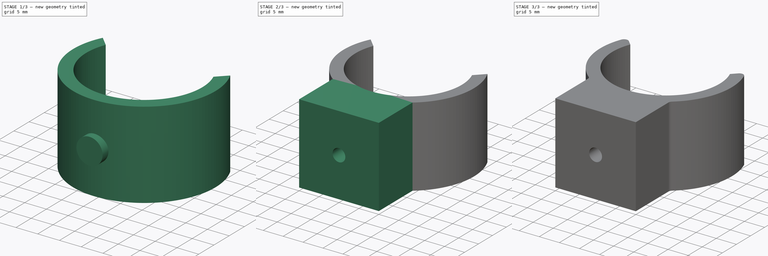
[diagram: build sequence overview — one tinted view per stage of 3, left to right]
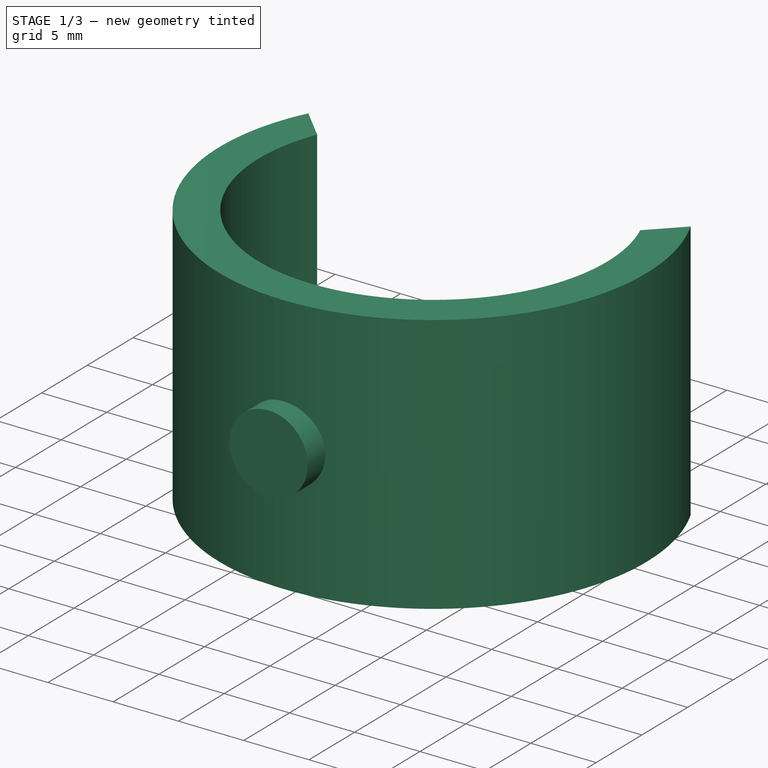
[diagram: stage 1 of 3 — iso view after this stage's code; geometry added in this stage tinted green]
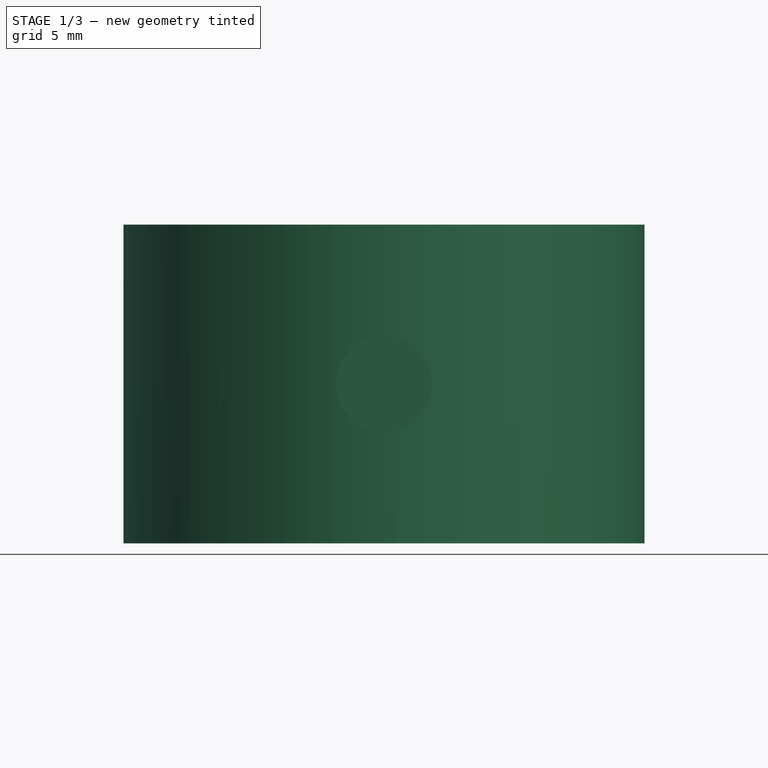
[diagram: stage 1 of 3 — front view after this stage's code; geometry added in this stage tinted green]
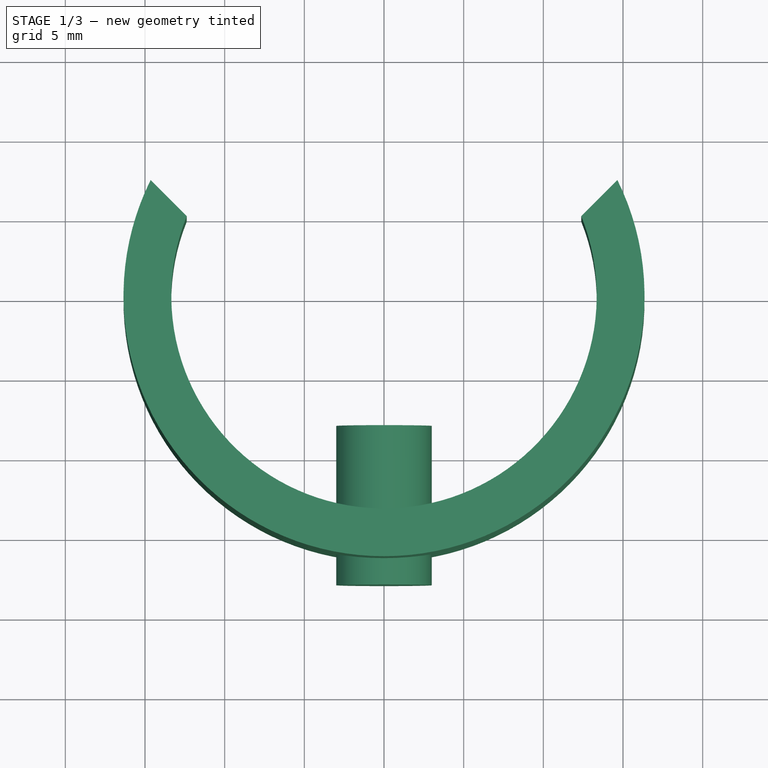
[diagram: stage 1 of 3 — top view after this stage's code; geometry added in this stage tinted green]
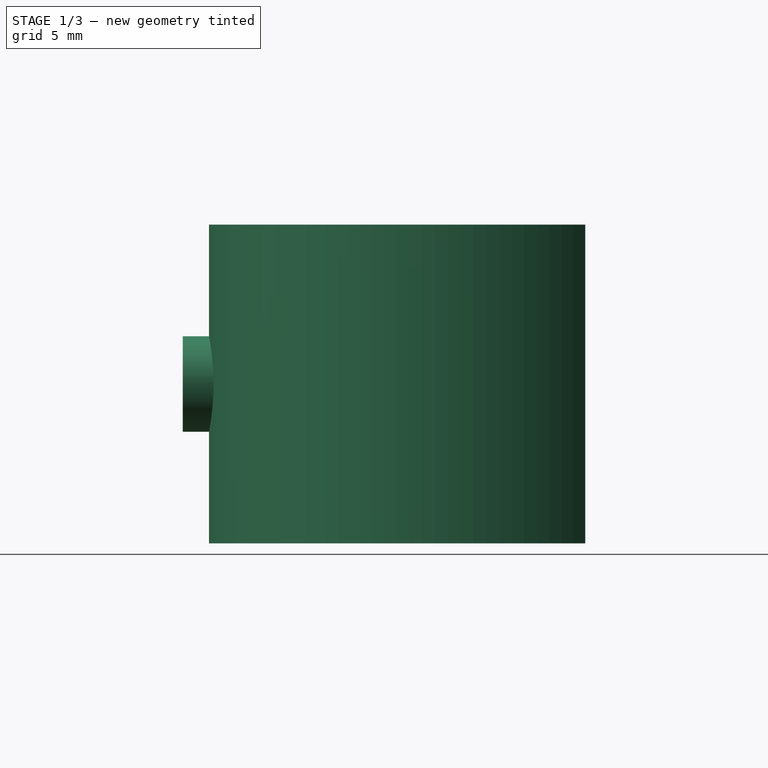
[diagram: stage 1 of 3 — right view after this stage's code; geometry added in this stage tinted green]
FCSTD DOCUMENT  (FreeCAD 0.16R6707 (Git))
Label: gluestick_holder
License: All rights reserved
LicenseURL: http://en.wikipedia.org/wiki/All_rights_reserved
objects: Sketcher::SketchObject×3, PartDesign::Pad×2, Part::Fillet×2, Spreadsheet::Sheet×1, PartDesign::Pocket×1, Part::Cylinder×1, Part::Cut×1
note: 13 computed .brp shape members not serialized (recipe doc carries the construction recipe); baked Part::Feature solids carry a one-line shape summary decoded from their .brp

FEATURE [Sketcher::SketchObject] Sketch
  expr: Constraints[6] = Sheet.stickRadius + Sheet.ArmThickness
  expr: Constraints[0] = Sheet.stickRadius
  sketch-geometry (5):
    g0: ArcOfCircle CenterX=0 CenterY=0 CenterZ=0 NormalX=0 NormalY=0 NormalZ=1 Radius=13.35 StartAngle=2.7577 EndAngle=6.66708
    g1: LineSegment [constr] StartX=-12.3783 StartY=5 StartZ=0 EndX=12.3783 EndY=5 EndZ=0
    g2: ArcOfCircle CenterX=0 CenterY=0 CenterZ=0 NormalX=0 NormalY=0 NormalZ=1 Radius=16.35 StartAngle=2.68097 EndAngle=6.74381
    g3: LineSegment StartX=-14.646 StartY=7.26764 StartZ=0 EndX=-12.3783 EndY=5 EndZ=0
    g4: LineSegment StartX=14.646 StartY=7.26764 StartZ=0 EndX=12.3783 EndY=5 EndZ=0
  constraints (14):
    c: Radius(g0) = 13.35
    c: Coincident(g0,g-1)
    c: Coincident(g0,g1)
    c: Coincident(g0,g1)
    c: Horizontal(g1)
    c: Coincident(g0,g2)
    c: Radius(g2) = 16.35
    c: Coincident(g2,g3)
    c: Coincident(g0,g3)
    c: Coincident(g2,g4)
    c: Coincident(g0,g4)
    c: DistanceY(g-1,g0) = 5
    c: Angle(g4) = 3.92699
    c: Angle(g3) = -0.785398
FEATURE [Spreadsheet::Sheet] Spreadsheet  label="Sheet"
  cells = D3=Gluestick Diameter; E3=26.7; F3(stickRadius)==E3 / 2; D4=Arm thickness; E4(ArmThickness)=3; D5=Part height; E5(height)=20; D6=base width; E6(baseWidth)=20
FEATURE [PartDesign::Pad] Pad
  Length = 20
  Length2 = 100
  Sketch = -> Sketch
  Type = 0
  expr: Length = Sheet.height
FEATURE [Part::Cylinder] Cylinder
  Angle = 360
  Height = 10
  Placement = pos=(0,-18,10) rot=(-0.57735,-0.57735,-0.57735;2.0944rad)
  Radius = 3
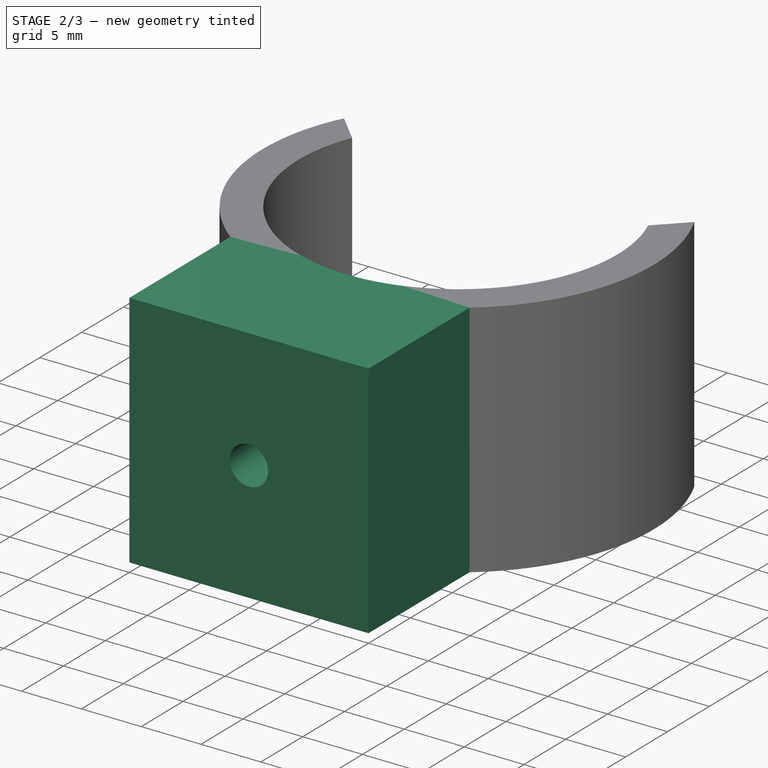
[diagram: stage 2 of 3 — iso view after this stage's code; geometry added in this stage tinted green]
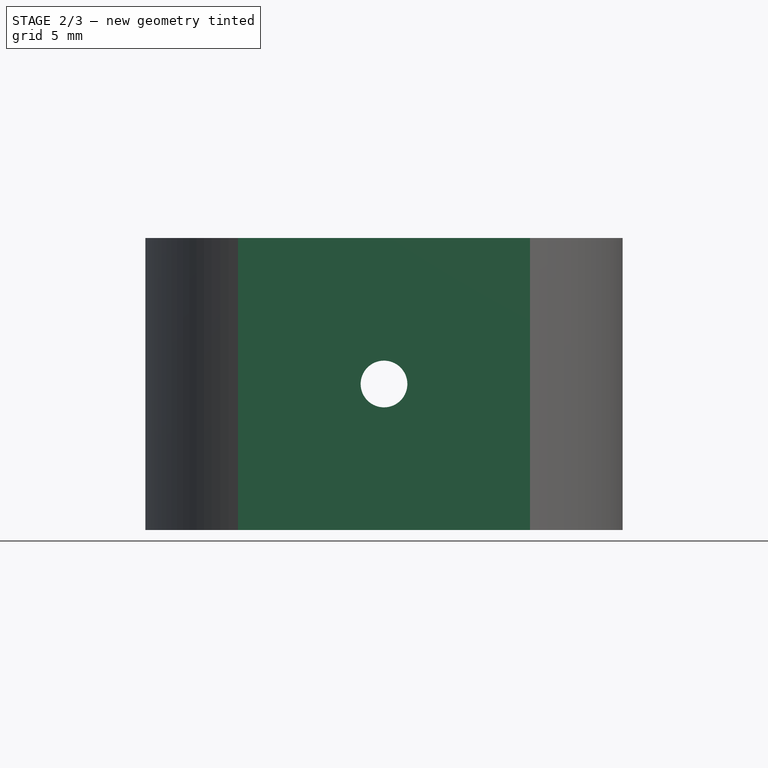
[diagram: stage 2 of 3 — front view after this stage's code; geometry added in this stage tinted green]
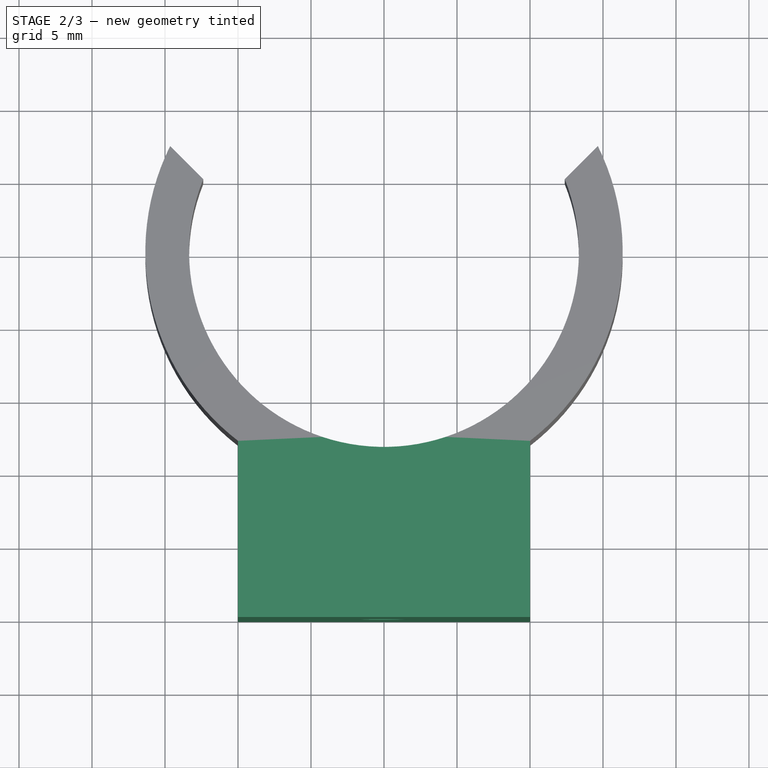
[diagram: stage 2 of 3 — top view after this stage's code; geometry added in this stage tinted green]
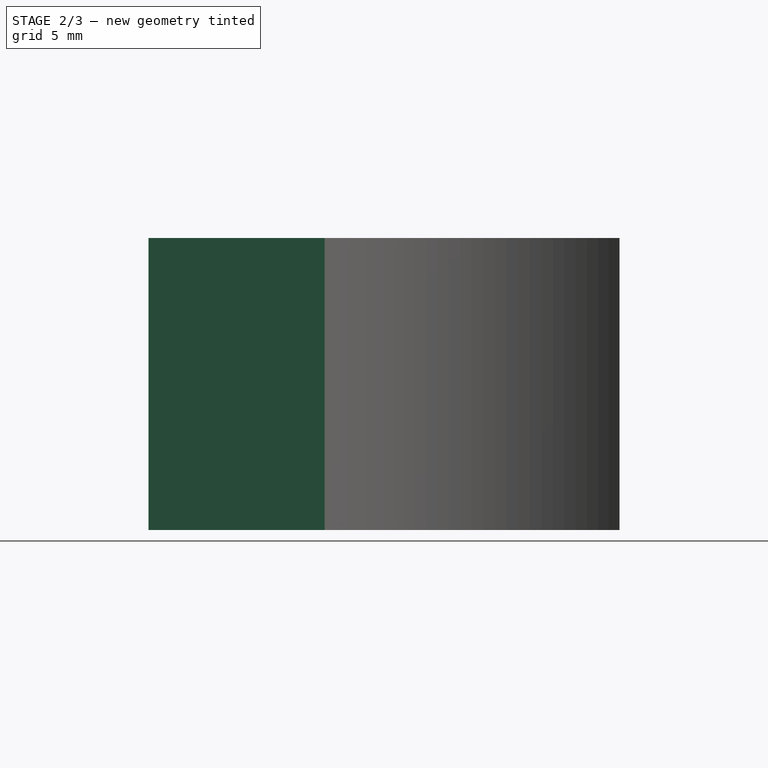
[diagram: stage 2 of 3 — right view after this stage's code; geometry added in this stage tinted green]
FEATURE [Sketcher::SketchObject] Sketch001
  Placement = pos=(0,0,20) rot=(0,0,1;0rad)
  Support = -> Pad [Face6]
  sketch-geometry (4):
    g0: ArcOfCircle CenterX=0 CenterY=0 CenterZ=0 NormalX=0 NormalY=0 NormalZ=1 Radius=14.1421 StartAngle=3.92699 EndAngle=5.49779
    g1: LineSegment StartX=10 StartY=-10 StartZ=0 EndX=10 EndY=-25 EndZ=0
    g2: LineSegment StartX=10 StartY=-25 StartZ=0 EndX=-10 EndY=-25 EndZ=0
    g3: LineSegment StartX=-10 StartY=-25 StartZ=0 EndX=-10 EndY=-10 EndZ=0
  constraints (12):
    c: Coincident(g1,g2)
    c: Coincident(g2,g3)
    c: Horizontal(g2)
    c: Vertical(g1)
    c: Vertical(g3)
    c: DistanceX(g2,g2) = 20
    c: Coincident(g0,g-1)
    c: Coincident(g0,g1)
    c: Coincident(g0,g3)
    c: DistanceY(g3,g3) = 15
    c: DistanceY(g1,g1) = 15
    c: DistanceY(g0,g-1) = 10
FEATURE [PartDesign::Pad] Pad001
  Length = 20
  Length2 = 100
  Reversed = true
  Sketch = -> Sketch001
  Type = 0
  expr: Length = Sheet.height
FEATURE [Sketcher::SketchObject] Sketch002
  Placement = pos=(0,-25,0) rot=(1,0,0;1.5708rad)
  Support = -> Pad001 [Face7]
  expr: Constraints[0] = Sheet.height / 2
  sketch-geometry (1):
    g0: Circle CenterX=0 CenterY=10 CenterZ=0 NormalX=0 NormalY=0 NormalZ=1 Radius=1.6
  constraints (3):
    c: DistanceY(g-1,g0) = 10
    c: DistanceX(g-1,g0) = 0
    c: Radius(g0) = 1.6
FEATURE [PartDesign::Pocket] Pocket
  Length = 5
  Sketch = -> Sketch002
  Type = 1
FEATURE [Part::Cut] Cut
  Base = -> Pocket
  Tool = -> Cylinder
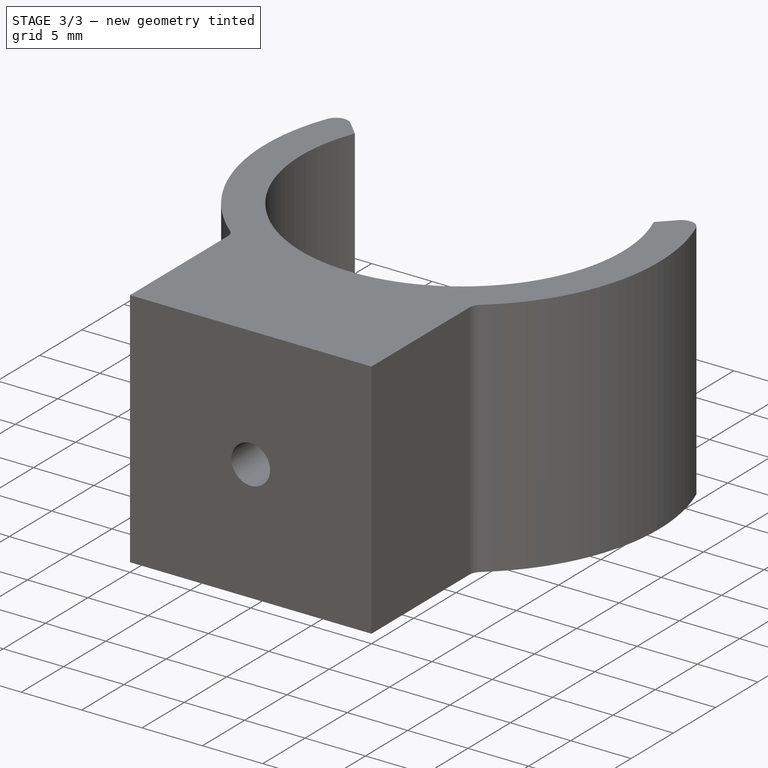
[diagram: stage 3 of 3 — iso view after this stage's code; geometry added in this stage tinted green]
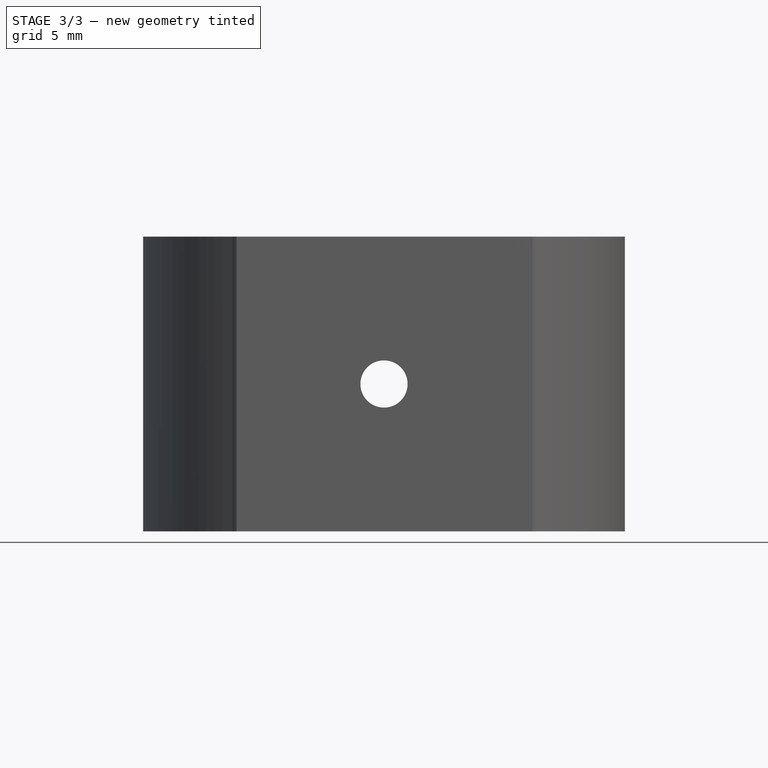
[diagram: stage 3 of 3 — front view after this stage's code; geometry added in this stage tinted green]
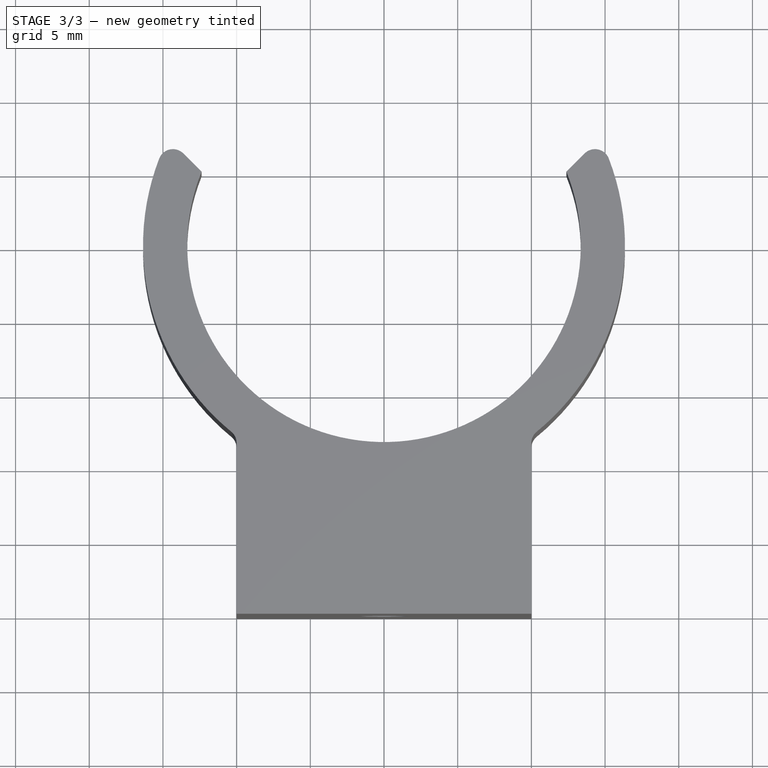
[diagram: stage 3 of 3 — top view after this stage's code; geometry added in this stage tinted green]
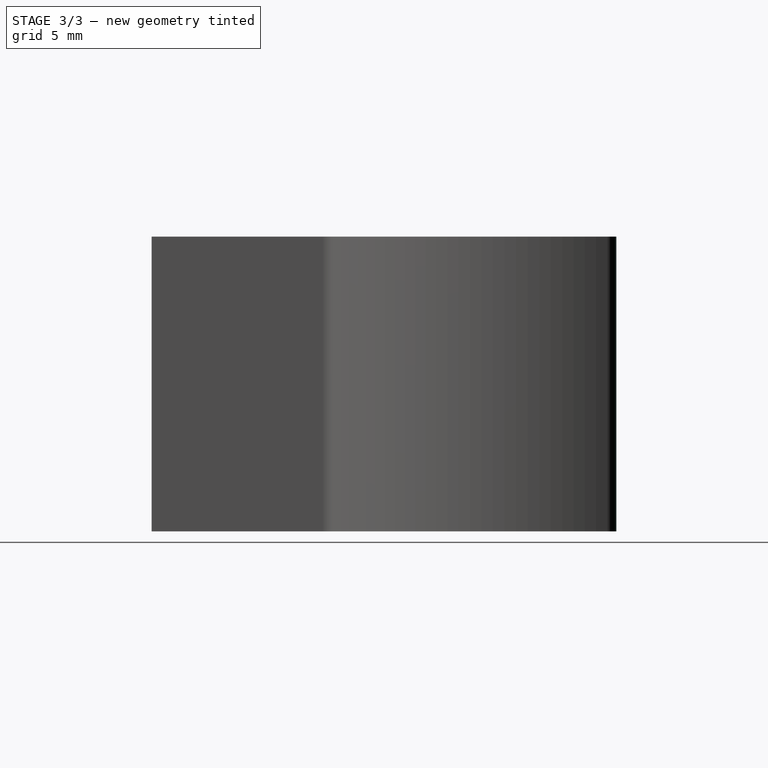
[diagram: stage 3 of 3 — right view after this stage's code; geometry added in this stage tinted green]
FEATURE [Part::Fillet] Fillet
  Base = -> Cut
  Edges = 2 edges r=1: [Edge1,Edge26]
FEATURE [Part::Fillet] Fillet001
  Base = -> Fillet
  Edges = 2 edges r=1: [Edge29,Edge35]
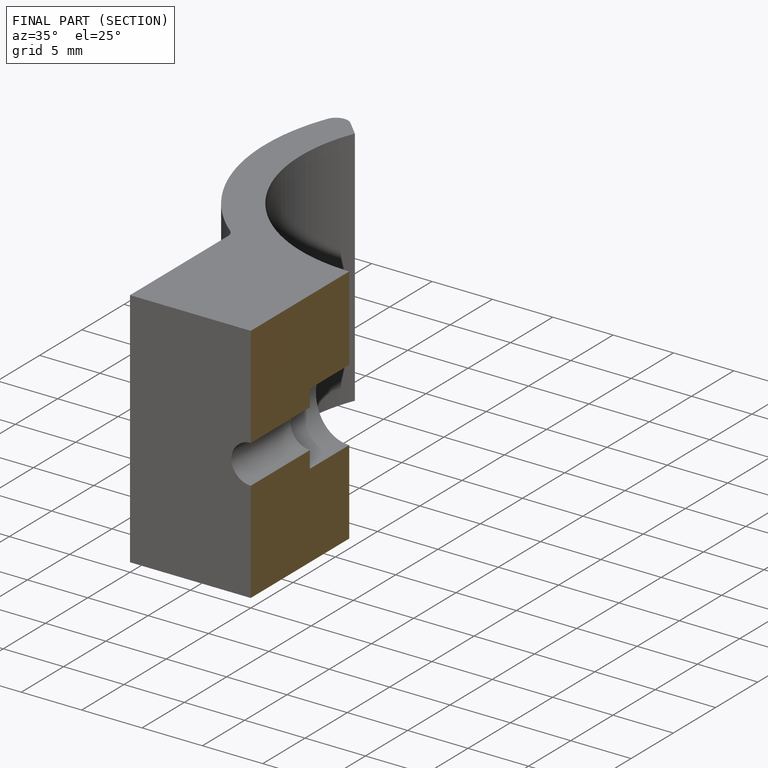
[diagram: finished part — half-section view (interior)]
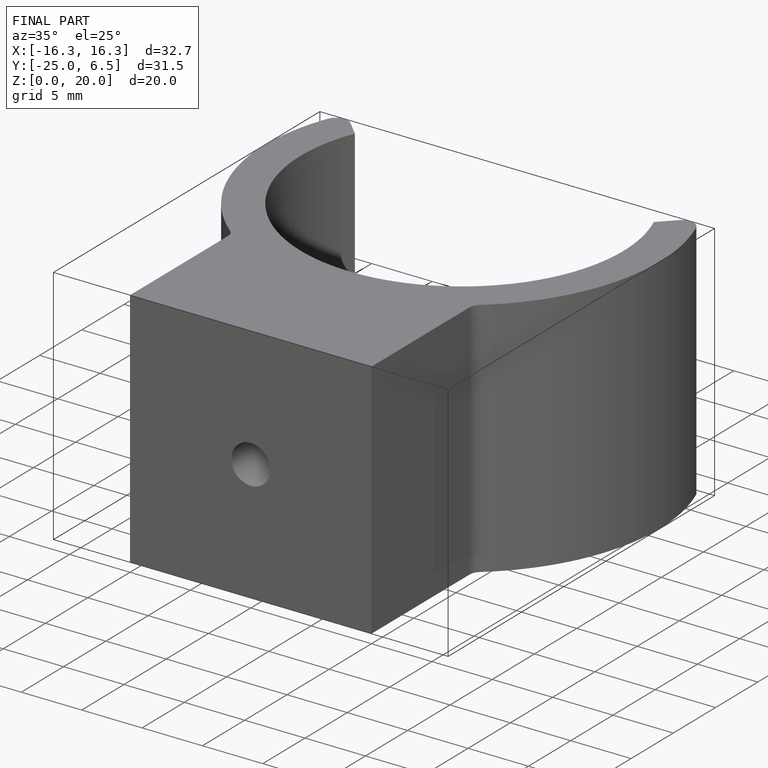
[diagram: finished part — iso view with bounding-box wireframe]
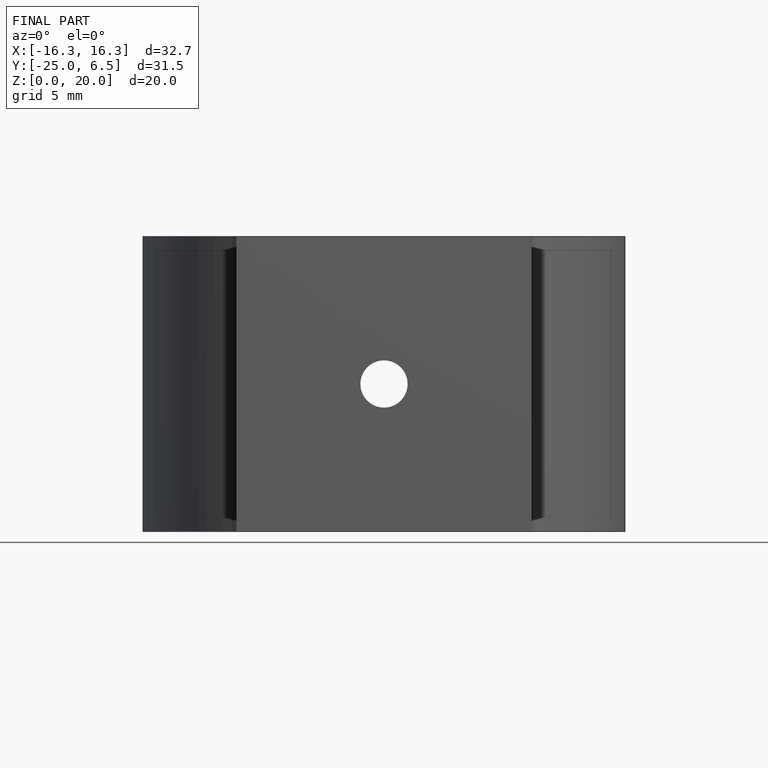
[diagram: finished part — front view with bounding-box wireframe]
